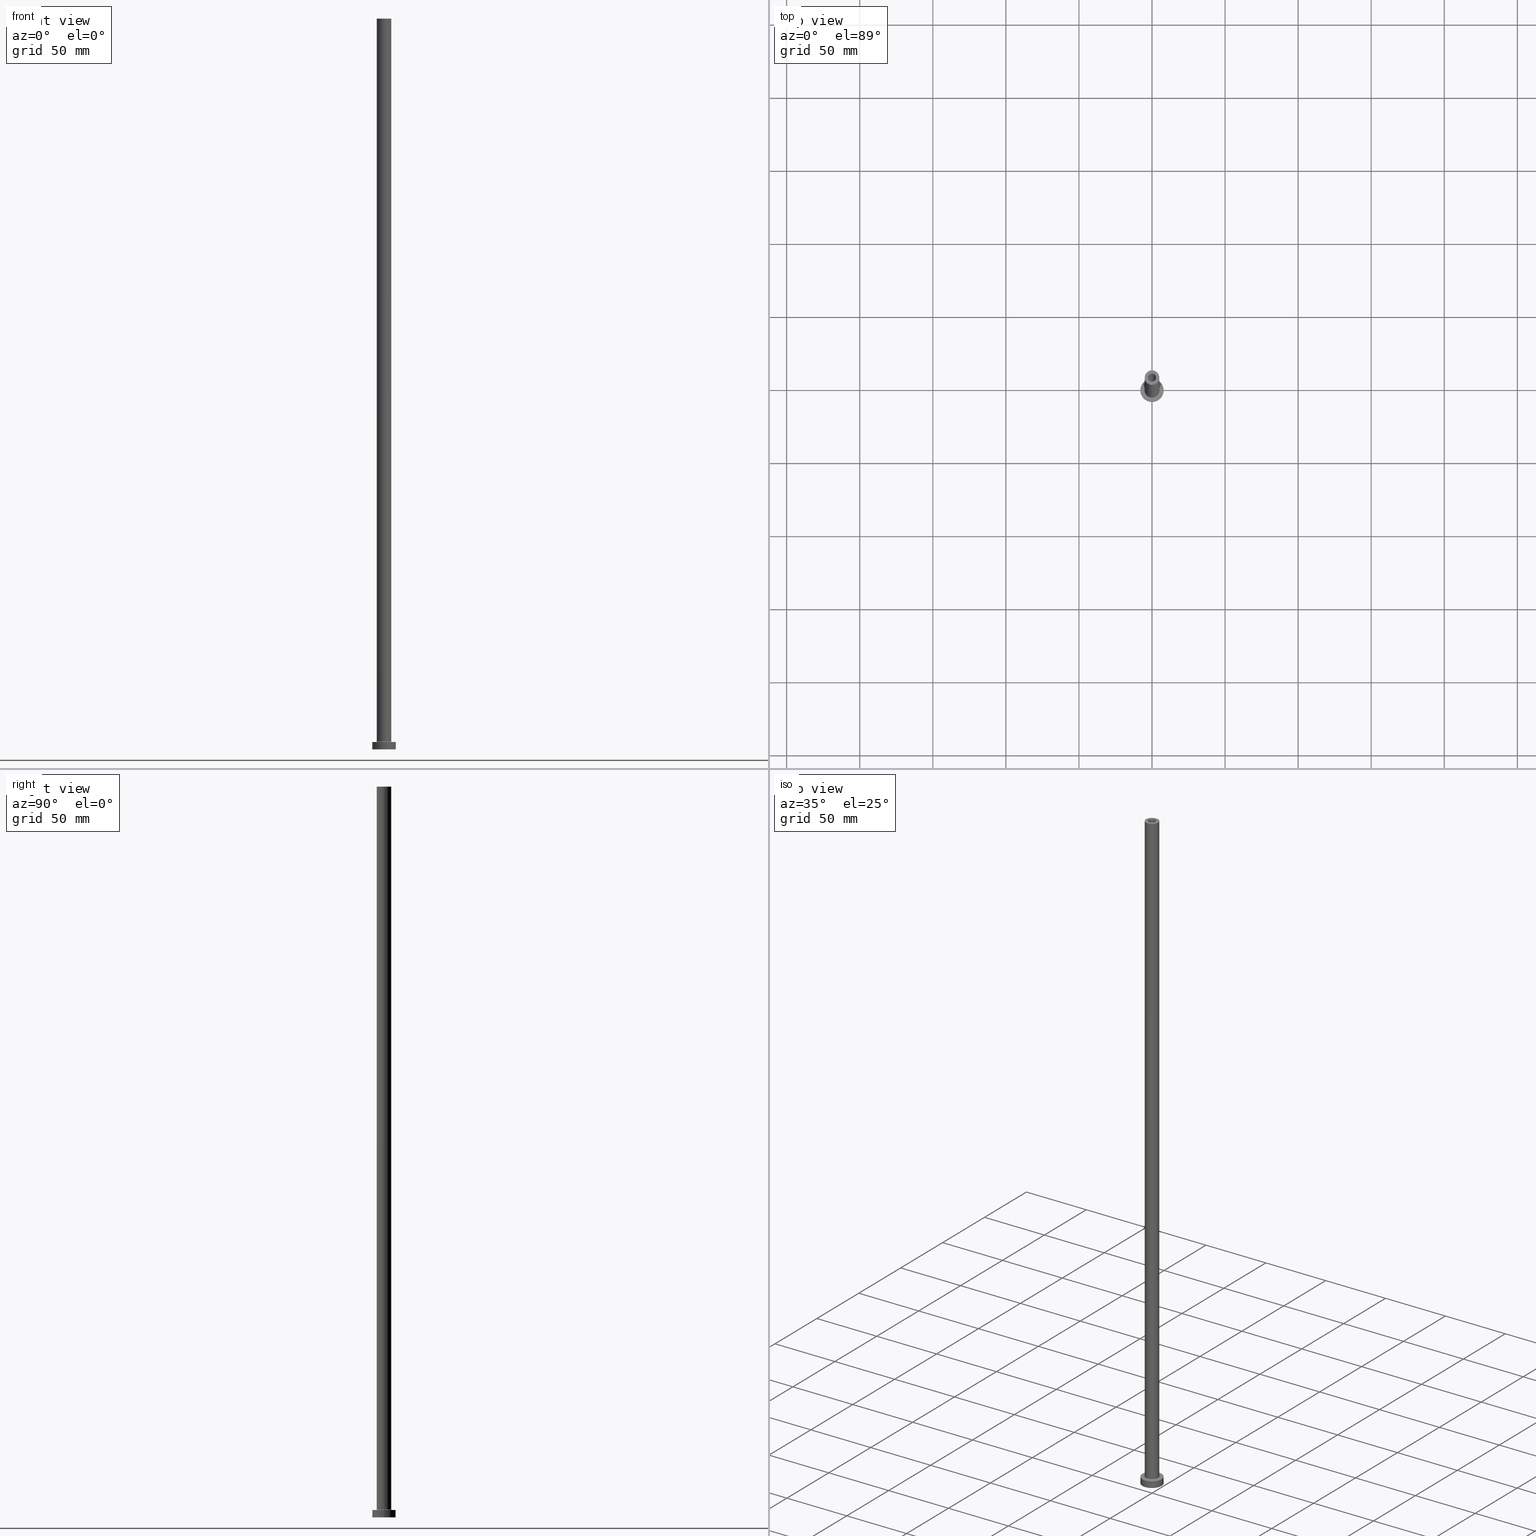
[diagram: canonical four-view strip — front | top / right | iso, engineering-drawing reading convention]
A machine part, canonical four-view strip (front | top / right | iso — engineering-drawing reading convention). The complete STEP part file that produces these views, byte-faithful:
ISO-10303-21;
HEADER;
FILE_DESCRIPTION (( 'STEP AP203' ),
    '1' );
FILE_NAME ('9653.STEP',
    '2023-02-13T16:12:24',
    ( '' ),
    ( '' ),
    'SwSTEP 2.0',
    'SolidWorks 2019',
    '' );
FILE_SCHEMA (( 'CONFIG_CONTROL_DESIGN' ));
ENDSEC;

DATA;
#1 = EDGE_LOOP ( 'NONE', ( #171, #202 ) ) ;
#2 = ORIENTED_EDGE ( 'NONE', *, *, #50, .T. ) ;
#3 = CIRCLE ( 'NONE', #377, 8.000000000000000000 ) ;
#4 = AXIS2_PLACEMENT_3D ( 'NONE', #438, #177, #320 ) ;
#5 = ORIENTED_EDGE ( 'NONE', *, *, #241, .F. ) ;
#6 = EDGE_LOOP ( 'NONE', ( #342, #35 ) ) ;
#7 = EDGE_CURVE ( 'NONE', #13, #164, #21, .T. ) ;
#8 = EDGE_LOOP ( 'NONE', ( #137, #28, #392, #318 ) ) ;
#9 = ADVANCED_FACE ( 'NONE', ( #128 ), #173, .F. ) ;
#10 = DIRECTION ( 'NONE',  ( 1.000000000000000000, 0.000000000000000000, -0.000000000000000000 ) ) ;
#11 = AXIS2_PLACEMENT_3D ( 'NONE', #332, #294, #448 ) ;
#12 = PRODUCT_DEFINITION_FORMATION_WITH_SPECIFIED_SOURCE ( 'LIBOVOLN�', '', #319, .NOT_KNOWN. ) ;
#13 = VERTEX_POINT ( 'NONE', #348 ) ;
#14 = AXIS2_PLACEMENT_3D ( 'NONE', #22, #406, #290 ) ;
#15 = AXIS2_PLACEMENT_3D ( 'NONE', #46, #360, #246 ) ;
#16 = FACE_BOUND ( 'NONE', #91, .T. ) ;
#17 = EDGE_CURVE ( 'NONE', #45, #265, #317, .T. ) ;
#18 = CALENDAR_DATE ( 2023, 13, 2 ) ;
#19 = CARTESIAN_POINT ( 'NONE',  ( -5.000000000000000000, 0.000000000000000000, 500.0000000000000000 ) ) ;
#20 = PERSON_AND_ORGANIZATION ( #458, #401 ) ;
#21 = CIRCLE ( 'NONE', #76, 2.750000000000000000 ) ;
#22 = CARTESIAN_POINT ( 'NONE',  ( 0.000000000000000000, 0.000000000000000000, 5.000000000000000000 ) ) ;
#23 = DIRECTION ( 'NONE',  ( -1.000000000000000000, 1.224646799147351482E-16, 0.000000000000000000 ) ) ;
#24 = COORDINATED_UNIVERSAL_TIME_OFFSET ( 1, 0, .AHEAD. ) ;
#25 = CARTESIAN_POINT ( 'NONE',  ( -2.750000000000000000, 0.000000000000000000, 500.0000000000000000 ) ) ;
#26 = DIRECTION ( 'NONE',  ( 0.000000000000000000, 0.000000000000000000, -1.000000000000000000 ) ) ;
#27 = CARTESIAN_POINT ( 'NONE',  ( 2.750000000000000000, 3.367778697655220519E-16, 500.0000000000000000 ) ) ;
#28 = ORIENTED_EDGE ( 'NONE', *, *, #175, .T. ) ;
#29 = DIRECTION ( 'NONE',  ( 1.000000000000000000, 0.000000000000000000, -0.000000000000000000 ) ) ;
#30 = PRODUCT_RELATED_PRODUCT_CATEGORY ( 'detail', '', ( #319 ) ) ;
#31 = PERSON_AND_ORGANIZATION ( #458, #401 ) ;
#32 = ORIENTED_EDGE ( 'NONE', *, *, #413, .F. ) ;
#33 = EDGE_CURVE ( 'NONE', #95, #40, #159, .T. ) ;
#34 = ORIENTED_EDGE ( 'NONE', *, *, #361, .T. ) ;
#35 = ORIENTED_EDGE ( 'NONE', *, *, #7, .F. ) ;
#36 = VERTEX_POINT ( 'NONE', #242 ) ;
#37 = ORIENTED_EDGE ( 'NONE', *, *, #7, .T. ) ;
#38 = CARTESIAN_POINT ( 'NONE',  ( -8.000000000000000000, 0.000000000000000000, 0.000000000000000000 ) ) ;
#39 = ORIENTED_EDGE ( 'NONE', *, *, #345, .F. ) ;
#40 = VERTEX_POINT ( 'NONE', #69 ) ;
#41 = CARTESIAN_POINT ( 'NONE',  ( 0.000000000000000000, 0.000000000000000000, 500.0000000000000000 ) ) ;
#42 = CC_DESIGN_APPROVAL ( #221, ( #12 ) ) ;
#43 = CARTESIAN_POINT ( 'NONE',  ( 0.000000000000000000, 0.000000000000000000, 0.000000000000000000 ) ) ;
#44 = DIRECTION ( 'NONE',  ( 0.000000000000000000, 0.000000000000000000, 1.000000000000000000 ) ) ;
#45 = VERTEX_POINT ( 'NONE', #352 ) ;
#46 = CARTESIAN_POINT ( 'NONE',  ( 0.000000000000000000, 0.000000000000000000, 0.000000000000000000 ) ) ;
#47 = VECTOR ( 'NONE', #198, 1000.000000000000000 ) ;
#48 = CARTESIAN_POINT ( 'NONE',  ( 0.000000000000000000, 0.000000000000000000, 455.0000000000000000 ) ) ;
#49 = AXIS2_PLACEMENT_3D ( 'NONE', #206, #273, #417 ) ;
#50 = EDGE_CURVE ( 'NONE', #302, #135, #267, .T. ) ;
#51 = DATE_AND_TIME ( #402, #303 ) ;
#52 = DIRECTION ( 'NONE',  ( 0.000000000000000000, 0.000000000000000000, -1.000000000000000000 ) ) ;
#53 = AXIS2_PLACEMENT_3D ( 'NONE', #289, #443, #79 ) ;
#54 = PERSON_AND_ORGANIZATION ( #458, #401 ) ;
#55 = CARTESIAN_POINT ( 'NONE',  ( -5.000000000000000000, 0.000000000000000000, 500.0000000000000000 ) ) ;
#56 = DIRECTION ( 'NONE',  ( 1.000000000000000000, 0.000000000000000000, 0.000000000000000000 ) ) ;
#57 = DIRECTION ( 'NONE',  ( 0.000000000000000000, 0.000000000000000000, 1.000000000000000000 ) ) ;
#58 = DIRECTION ( 'NONE',  ( 0.000000000000000000, 0.000000000000000000, 1.000000000000000000 ) ) ;
#59 = CARTESIAN_POINT ( 'NONE',  ( -8.000000000000000000, 0.000000000000000000, 5.000000000000000000 ) ) ;
#60 = ORIENTED_EDGE ( 'NONE', *, *, #278, .T. ) ;
#61 = DIRECTION ( 'NONE',  ( 0.000000000000000000, 0.000000000000000000, 1.000000000000000000 ) ) ;
#62 = VERTEX_POINT ( 'NONE', #263 ) ;
#63 = CALENDAR_DATE ( 2023, 13, 2 ) ;
#64 = CARTESIAN_POINT ( 'NONE',  ( 8.000000000000000000, 9.797174393178825657E-16, 5.000000000000000000 ) ) ;
#65 = AXIS2_PLACEMENT_3D ( 'NONE', #321, #102, #191 ) ;
#66 = EDGE_CURVE ( 'NONE', #164, #13, #407, .T. ) ;
#67 = DIRECTION ( 'NONE',  ( 0.000000000000000000, 0.000000000000000000, 1.000000000000000000 ) ) ;
#68 = ORIENTED_EDGE ( 'NONE', *, *, #312, .T. ) ;
#69 = CARTESIAN_POINT ( 'NONE',  ( -2.750000000000000000, 0.000000000000000000, 455.0000000000000000 ) ) ;
#70 = CYLINDRICAL_SURFACE ( 'NONE', #370, 5.000000000000000000 ) ;
#71 = ORIENTED_EDGE ( 'NONE', *, *, #382, .T. ) ;
#72 = ORIENTED_EDGE ( 'NONE', *, *, #17, .T. ) ;
#73 = FACE_BOUND ( 'NONE', #199, .T. ) ;
#74 = EDGE_CURVE ( 'NONE', #201, #454, #436, .T. ) ;
#75 = CARTESIAN_POINT ( 'NONE',  ( 0.000000000000000000, 0.000000000000000000, 500.0000000000000000 ) ) ;
#76 = AXIS2_PLACEMENT_3D ( 'NONE', #176, #67, #239 ) ;
#77 = DIRECTION ( 'NONE',  ( 0.000000000000000000, 0.000000000000000000, 1.000000000000000000 ) ) ;
#78 = DIRECTION ( 'NONE',  ( 0.000000000000000000, 0.000000000000000000, 1.000000000000000000 ) ) ;
#79 = DIRECTION ( 'NONE',  ( 1.000000000000000000, 0.000000000000000000, 0.000000000000000000 ) ) ;
#80 = CARTESIAN_POINT ( 'NONE',  ( 5.500000000000000000, 0.000000000000000000, 5.000000000000002665 ) ) ;
#81 = CARTESIAN_POINT ( 'NONE',  ( 2.750000000000000000, 3.367778697655220519E-16, 455.0000000000000000 ) ) ;
#82 = CYLINDRICAL_SURFACE ( 'NONE', #238, 2.899999999999999911 ) ;
#83 = EDGE_CURVE ( 'NONE', #418, #36, #205, .T. ) ;
#84 = DATE_AND_TIME ( #405, #113 ) ;
#85 = APPROVAL_DATE_TIME ( #229, #261 ) ;
#86 = FACE_OUTER_BOUND ( 'NONE', #178, .T. ) ;
#87 = AXIS2_PLACEMENT_3D ( 'NONE', #399, #364, #286 ) ;
#88 = APPROVAL_PERSON_ORGANIZATION ( #20, #375, #266 ) ;
#89 = CARTESIAN_POINT ( 'NONE',  ( 0.000000000000000000, 0.000000000000000000, 5.000000000000000000 ) ) ;
#90 = EDGE_LOOP ( 'NONE', ( #309, #72 ) ) ;
#91 = EDGE_LOOP ( 'NONE', ( #131, #240 ) ) ;
#92 = ORIENTED_EDGE ( 'NONE', *, *, #116, .T. ) ;
#93 = LINE ( 'NONE', #381, #211 ) ;
#94 = ORIENTED_EDGE ( 'NONE', *, *, #50, .F. ) ;
#95 = VERTEX_POINT ( 'NONE', #81 ) ;
#96 = CIRCLE ( 'NONE', #355, 0.5000000000000004441 ) ;
#97 = CARTESIAN_POINT ( 'NONE',  ( 0.000000000000000000, 0.000000000000000000, 5.500000000000005329 ) ) ;
#98 = EDGE_LOOP ( 'NONE', ( #39, #157, #99, #92 ) ) ;
#99 = ORIENTED_EDGE ( 'NONE', *, *, #241, .T. ) ;
#100 = AXIS2_PLACEMENT_3D ( 'NONE', #299, #415, #330 ) ;
#101 = DIRECTION ( 'NONE',  ( -1.000000000000000000, 0.000000000000000000, 0.000000000000000000 ) ) ;
#102 = DIRECTION ( 'NONE',  ( 0.000000000000000000, 0.000000000000000000, 1.000000000000000000 ) ) ;
#103 = DIRECTION ( 'NONE',  ( 0.000000000000000000, 0.000000000000000000, 1.000000000000000000 ) ) ;
#104 = CIRCLE ( 'NONE', #11, 2.899999999999999911 ) ;
#105 = DIRECTION ( 'NONE',  ( 0.000000000000000000, 0.000000000000000000, -1.000000000000000000 ) ) ;
#106 = EDGE_LOOP ( 'NONE', ( #357, #374, #304, #125 ) ) ;
#107 = EDGE_CURVE ( 'NONE', #164, #40, #333, .T. ) ;
#108 = CARTESIAN_POINT ( 'NONE',  ( 0.000000000000000000, 0.000000000000000000, 455.0000000000000000 ) ) ;
#109 = CLOSED_SHELL ( 'NONE', ( #9, #445, #453, #366, #140, #419, #326, #295, #209, #224, #151, #204, #284, #372 ) ) ;
#110 = ORIENTED_EDGE ( 'NONE', *, *, #331, .T. ) ;
#111 = LINE ( 'NONE', #391, #422 ) ;
#112 = CIRCLE ( 'NONE', #172, 2.899999999999999911 ) ;
#113 = LOCAL_TIME ( 17, 12, 24.00000000000000000, #257 ) ;
#114 = AXIS2_PLACEMENT_3D ( 'NONE', #193, #285, #442 ) ;
#115 = DIRECTION ( 'NONE',  ( 1.000000000000000000, 0.000000000000000000, 0.000000000000000000 ) ) ;
#116 = EDGE_CURVE ( 'NONE', #380, #457, #234, .T. ) ;
#117 = CARTESIAN_POINT ( 'NONE',  ( 5.500000000000000000, 0.000000000000000000, 5.500000000000005329 ) ) ;
#118 = APPROVAL_STATUS ( 'not_yet_approved' ) ;
#119 = FACE_BOUND ( 'NONE', #307, .T. ) ;
#120 = CARTESIAN_POINT ( 'NONE',  ( 0.000000000000000000, 0.000000000000000000, 463.2024386617639493 ) ) ;
#121 = DIRECTION ( 'NONE',  ( 0.000000000000000000, 0.000000000000000000, -1.000000000000000000 ) ) ;
#122 = VECTOR ( 'NONE', #365, 1000.000000000000000 ) ;
#123 = CARTESIAN_POINT ( 'NONE',  ( 2.899999999999999911, 3.551475717527323339E-16, 455.0000000000000000 ) ) ;
#124 = PERSON_AND_ORGANIZATION_ROLE ( 'creator' ) ;
#125 = ORIENTED_EDGE ( 'NONE', *, *, #441, .F. ) ;
#126 = APPROVAL_PERSON_ORGANIZATION ( #54, #221, #412 ) ;
#127 = ORIENTED_EDGE ( 'NONE', *, *, #130, .T. ) ;
#128 = FACE_OUTER_BOUND ( 'NONE', #8, .T. ) ;
#129 = EDGE_LOOP ( 'NONE', ( #236, #425, #34, #5 ) ) ;
#130 = EDGE_CURVE ( 'NONE', #135, #302, #153, .T. ) ;
#131 = ORIENTED_EDGE ( 'NONE', *, *, #83, .T. ) ;
#132 = AXIS2_PLACEMENT_3D ( 'NONE', #154, #296, #259 ) ;
#133 = ORIENTED_EDGE ( 'NONE', *, *, #175, .F. ) ;
#134 = CARTESIAN_POINT ( 'NONE',  ( 0.000000000000000000, 0.000000000000000000, 500.0000000000000000 ) ) ;
#135 = VERTEX_POINT ( 'NONE', #410 ) ;
#136 = DIRECTION ( 'NONE',  ( 1.000000000000000000, 0.000000000000000000, 0.000000000000000000 ) ) ;
#137 = ORIENTED_EDGE ( 'NONE', *, *, #66, .T. ) ;
#138 = AXIS2_PLACEMENT_3D ( 'NONE', #403, #232, #56 ) ;
#139 = DIRECTION ( 'NONE',  ( -0.000000000000000000, -0.000000000000000000, -1.000000000000000000 ) ) ;
#140 = ADVANCED_FACE ( 'NONE', ( #373 ), #195, .T. ) ;
#141 = AXIS2_PLACEMENT_3D ( 'NONE', #160, #455, #379 ) ;
#142 = FACE_OUTER_BOUND ( 'NONE', #129, .T. ) ;
#143 = CC_DESIGN_APPROVAL ( #261, ( #337 ) ) ;
#144 = CC_DESIGN_PERSON_AND_ORGANIZATION_ASSIGNMENT ( #31, #161, ( #282 ) ) ;
#145 = EDGE_LOOP ( 'NONE', ( #216, #235, #169, #420 ) ) ;
#146 = DIRECTION ( 'NONE',  ( 0.000000000000000000, 0.000000000000000000, -1.000000000000000000 ) ) ;
#147 = APPLICATION_PROTOCOL_DEFINITION ( 'international standard', 'config_control_design', 1994, #327 ) ;
#148 = CC_DESIGN_SECURITY_CLASSIFICATION ( #282, ( #12 ) ) ;
#149 = CARTESIAN_POINT ( 'NONE',  ( 0.000000000000000000, 0.000000000000000000, 500.0000000000000000 ) ) ;
#150 = CYLINDRICAL_SURFACE ( 'NONE', #132, 8.000000000000000000 ) ;
#151 = ADVANCED_FACE ( 'NONE', ( #305 ), #340, .F. ) ;
#152 = CYLINDRICAL_SURFACE ( 'NONE', #411, 2.899999999999999911 ) ;
#153 = CIRCLE ( 'NONE', #421, 8.000000000000000000 ) ;
#154 = CARTESIAN_POINT ( 'NONE',  ( 0.000000000000000000, 0.000000000000000000, 5.000000000000000000 ) ) ;
#155 = PERSON_AND_ORGANIZATION ( #458, #401 ) ;
#156 = EDGE_CURVE ( 'NONE', #302, #344, #272, .T. ) ;
#157 = ORIENTED_EDGE ( 'NONE', *, *, #389, .F. ) ;
#158 = LINE ( 'NONE', #55, #237 ) ;
#159 = CIRCLE ( 'NONE', #444, 2.750000000000000000 ) ;
#160 = CARTESIAN_POINT ( 'NONE',  ( 0.000000000000000000, 0.000000000000000000, 5.000000000000000000 ) ) ;
#161 = PERSON_AND_ORGANIZATION_ROLE ( 'classification_officer' ) ;
#162 = ORIENTED_EDGE ( 'NONE', *, *, #429, .F. ) ;
#163 =( NAMED_UNIT ( * ) PLANE_ANGLE_UNIT ( ) SI_UNIT ( $, .RADIAN. ) );
#164 = VERTEX_POINT ( 'NONE', #208 ) ;
#165 = EDGE_LOOP ( 'NONE', ( #376, #110, #427, #264 ) ) ;
#166 = EDGE_CURVE ( 'NONE', #344, #274, #3, .T. ) ;
#167 = DIRECTION ( 'NONE',  ( 0.000000000000000000, 0.000000000000000000, 1.000000000000000000 ) ) ;
#168 = DIRECTION ( 'NONE',  ( -0.000000000000000000, -0.000000000000000000, -1.000000000000000000 ) ) ;
#169 = ORIENTED_EDGE ( 'NONE', *, *, #74, .T. ) ;
#170 = APPLICATION_PROTOCOL_DEFINITION ( 'international standard', 'config_control_design', 1994, #308 ) ;
#171 = ORIENTED_EDGE ( 'NONE', *, *, #408, .F. ) ;
#172 = AXIS2_PLACEMENT_3D ( 'NONE', #185, #78, #329 ) ;
#173 = CYLINDRICAL_SURFACE ( 'NONE', #49, 2.750000000000000000 ) ;
#174 = CARTESIAN_POINT ( 'NONE',  ( 0.000000000000000000, 0.000000000000000000, 5.000000000000000000 ) ) ;
#175 = EDGE_CURVE ( 'NONE', #13, #95, #336, .T. ) ;
#176 = CARTESIAN_POINT ( 'NONE',  ( 0.000000000000000000, 0.000000000000000000, 500.0000000000000000 ) ) ;
#177 = DIRECTION ( 'NONE',  ( 0.000000000000000000, 0.000000000000000000, 1.000000000000000000 ) ) ;
#178 = EDGE_LOOP ( 'NONE', ( #32, #314, #71, #60 ) ) ;
#179 = FACE_OUTER_BOUND ( 'NONE', #383, .T. ) ;
#180 = MECHANICAL_CONTEXT ( 'NONE', #308, 'mechanical' ) ;
#181 = MANIFOLD_SOLID_BREP ( 'Odebrat vysunut�m4', #109 ) ;
#182 = DIRECTION ( 'NONE',  ( 0.000000000000000000, 0.000000000000000000, 1.000000000000000000 ) ) ;
#183 = AXIS2_PLACEMENT_3D ( 'NONE', #447, #182, #449 ) ;
#184 = APPROVAL_DATE_TIME ( #84, #221 ) ;
#185 = CARTESIAN_POINT ( 'NONE',  ( 0.000000000000000000, 0.000000000000000000, 455.0000000000000000 ) ) ;
#186 = FACE_OUTER_BOUND ( 'NONE', #269, .T. ) ;
#187 = EDGE_CURVE ( 'NONE', #461, #62, #112, .T. ) ;
#188 = DATE_TIME_ROLE ( 'classification_date' ) ;
#189 = CARTESIAN_POINT ( 'NONE',  ( -5.500000000000000000, 6.735557395310442023E-16, 5.500000000000005329 ) ) ;
#190 = CARTESIAN_POINT ( 'NONE',  ( 8.000000000000000000, 9.797174393178825657E-16, 0.000000000000000000 ) ) ;
#191 = DIRECTION ( 'NONE',  ( 1.000000000000000000, 0.000000000000000000, -0.000000000000000000 ) ) ;
#192 = TOROIDAL_SURFACE ( 'NONE', #439, 5.500000000000000000, 0.5000000000000000000 ) ;
#193 = CARTESIAN_POINT ( 'NONE',  ( 0.000000000000000000, 0.000000000000000000, 455.0000000000000000 ) ) ;
#194 = DIRECTION ( 'NONE',  ( 0.000000000000000000, 0.000000000000000000, 1.000000000000000000 ) ) ;
#195 = CYLINDRICAL_SURFACE ( 'NONE', #141, 8.000000000000000000 ) ;
#196 = SECURITY_CLASSIFICATION_LEVEL ( 'unclassified' ) ;
#197 = DIRECTION ( 'NONE',  ( 1.000000000000000000, 0.000000000000000000, -0.000000000000000000 ) ) ;
#198 = DIRECTION ( 'NONE',  ( -0.000000000000000000, -0.000000000000000000, -1.000000000000000000 ) ) ;
#199 = EDGE_LOOP ( 'NONE', ( #387, #220 ) ) ;
#200 = AXIS2_PLACEMENT_3D ( 'NONE', #149, #194, #29 ) ;
#201 = VERTEX_POINT ( 'NONE', #298 ) ;
#202 = ORIENTED_EDGE ( 'NONE', *, *, #187, .F. ) ;
#203 = CARTESIAN_POINT ( 'NONE',  ( -8.000000000000000000, 0.000000000000000000, 5.000000000000000000 ) ) ;
#204 = ADVANCED_FACE ( 'NONE', ( #86 ), #152, .F. ) ;
#205 = CIRCLE ( 'NONE', #14, 5.500000000000000000 ) ;
#206 = CARTESIAN_POINT ( 'NONE',  ( 0.000000000000000000, 0.000000000000000000, 500.0000000000000000 ) ) ;
#207 = ORIENTED_EDGE ( 'NONE', *, *, #361, .F. ) ;
#208 = CARTESIAN_POINT ( 'NONE',  ( -2.750000000000000000, 0.000000000000000000, 500.0000000000000000 ) ) ;
#209 = ADVANCED_FACE ( 'NONE', ( #301 ), #260, .T. ) ;
#210 = DIRECTION ( 'NONE',  ( 1.000000000000000000, 0.000000000000000000, 0.000000000000000000 ) ) ;
#211 = VECTOR ( 'NONE', #168, 1000.000000000000000 ) ;
#212 = ORIENTED_EDGE ( 'NONE', *, *, #107, .T. ) ;
#213 = DESIGN_CONTEXT ( 'detailed design', #327, 'design' ) ;
#214 = EDGE_LOOP ( 'NONE', ( #133, #37, #212, #430 ) ) ;
#215 = CARTESIAN_POINT ( 'NONE',  ( -5.000000000000000000, 0.000000000000000000, 5.500000000000005329 ) ) ;
#216 = ORIENTED_EDGE ( 'NONE', *, *, #408, .T. ) ;
#217 = AXIS2_PLACEMENT_3D ( 'NONE', #117, #226, #256 ) ;
#218 = DIRECTION ( 'NONE',  ( 0.000000000000000000, 0.000000000000000000, 1.000000000000000000 ) ) ;
#219 = AXIS2_PLACEMENT_3D ( 'NONE', #75, #105, #356 ) ;
#220 = ORIENTED_EDGE ( 'NONE', *, *, #74, .F. ) ;
#221 = APPROVAL ( #118, 'NEUR�EN�' ) ;
#222 = CIRCLE ( 'NONE', #217, 0.5000000000000004441 ) ;
#223 = DIRECTION ( 'NONE',  ( -1.000000000000000000, 0.000000000000000000, 0.000000000000000000 ) ) ;
#224 = ADVANCED_FACE ( 'NONE', ( #409, #230 ), #371, .T. ) ;
#225 = DIRECTION ( 'NONE',  ( 1.000000000000000000, 0.000000000000000000, 0.000000000000000000 ) ) ;
#226 = DIRECTION ( 'NONE',  ( 0.000000000000000000, -1.000000000000000000, 0.000000000000000000 ) ) ;
#227 = CARTESIAN_POINT ( 'NONE',  ( 0.000000000000000000, 0.000000000000000000, 5.000000000000000000 ) ) ;
#228 = APPROVAL_STATUS ( 'not_yet_approved' ) ;
#229 = DATE_AND_TIME ( #18, #311 ) ;
#230 = FACE_OUTER_BOUND ( 'NONE', #90, .T. ) ;
#231 =( GEOMETRIC_REPRESENTATION_CONTEXT ( 3 ) GLOBAL_UNCERTAINTY_ASSIGNED_CONTEXT ( ( #288 ) ) GLOBAL_UNIT_ASSIGNED_CONTEXT ( ( #343, #163, #341 ) ) REPRESENTATION_CONTEXT ( 'NONE', 'WORKASPACE' ) );
#232 = DIRECTION ( 'NONE',  ( 0.000000000000000000, 0.000000000000000000, 1.000000000000000000 ) ) ;
#233 = ORIENTED_EDGE ( 'NONE', *, *, #441, .T. ) ;
#234 = CIRCLE ( 'NONE', #384, 5.000000000000000000 ) ;
#235 = ORIENTED_EDGE ( 'NONE', *, *, #413, .T. ) ;
#236 = ORIENTED_EDGE ( 'NONE', *, *, #17, .F. ) ;
#237 = VECTOR ( 'NONE', #397, 1000.000000000000000 ) ;
#238 = AXIS2_PLACEMENT_3D ( 'NONE', #120, #146, #283 ) ;
#239 = DIRECTION ( 'NONE',  ( 1.000000000000000000, 0.000000000000000000, 0.000000000000000000 ) ) ;
#240 = ORIENTED_EDGE ( 'NONE', *, *, #247, .T. ) ;
#241 = EDGE_CURVE ( 'NONE', #265, #380, #158, .T. ) ;
#242 = CARTESIAN_POINT ( 'NONE',  ( -5.500000000000000000, 6.735557395310442023E-16, 5.000000000000002665 ) ) ;
#243 = DIRECTION ( 'NONE',  ( 1.000000000000000000, 0.000000000000000000, 0.000000000000000000 ) ) ;
#244 = APPROVAL_PERSON_ORGANIZATION ( #325, #261, #279 ) ;
#245 = ORIENTED_EDGE ( 'NONE', *, *, #437, .F. ) ;
#246 = DIRECTION ( 'NONE',  ( 1.000000000000000000, 0.000000000000000000, 0.000000000000000000 ) ) ;
#247 = EDGE_CURVE ( 'NONE', #36, #418, #433, .T. ) ;
#248 = FACE_OUTER_BOUND ( 'NONE', #214, .T. ) ;
#249 = CIRCLE ( 'NONE', #4, 5.000000000000000000 ) ;
#250 = CARTESIAN_POINT ( 'NONE',  ( -2.899999999999999911, 0.000000000000000000, 0.000000000000000000 ) ) ;
#251 = LINE ( 'NONE', #404, #293 ) ;
#252 = CC_DESIGN_PERSON_AND_ORGANIZATION_ASSIGNMENT ( #297, #450, ( #12 ) ) ;
#253 = AXIS2_PLACEMENT_3D ( 'NONE', #48, #77, #10 ) ;
#254 = LOCAL_TIME ( 17, 12, 24.00000000000000000, #416 ) ;
#255 = PERSON_AND_ORGANIZATION ( #458, #401 ) ;
#256 = DIRECTION ( 'NONE',  ( 0.000000000000000000, 0.000000000000000000, -1.000000000000000000 ) ) ;
#257 = COORDINATED_UNIVERSAL_TIME_OFFSET ( 1, 0, .AHEAD. ) ;
#258 = FACE_OUTER_BOUND ( 'NONE', #1, .T. ) ;
#259 = DIRECTION ( 'NONE',  ( -1.000000000000000000, 0.000000000000000000, 0.000000000000000000 ) ) ;
#260 = CYLINDRICAL_SURFACE ( 'NONE', #87, 5.000000000000000000 ) ;
#261 = APPROVAL ( #228, 'NEUR�EN�' ) ;
#262 = AXIS2_PLACEMENT_3D ( 'NONE', #108, #218, #334 ) ;
#263 = CARTESIAN_POINT ( 'NONE',  ( -2.899999999999999911, 0.000000000000000000, 455.0000000000000000 ) ) ;
#264 = ORIENTED_EDGE ( 'NONE', *, *, #156, .F. ) ;
#265 = VERTEX_POINT ( 'NONE', #19 ) ;
#266 = APPROVAL_ROLE ( '' ) ;
#267 = CIRCLE ( 'NONE', #394, 8.000000000000000000 ) ;
#268 = CIRCLE ( 'NONE', #395, 5.000000000000000000 ) ;
#269 = EDGE_LOOP ( 'NONE', ( #306, #94, #432, #313 ) ) ;
#270 = CARTESIAN_POINT ( 'NONE',  ( 0.000000000000000000, 0.000000000000000000, 455.0000000000000000 ) ) ;
#271 = CALENDAR_DATE ( 2023, 13, 2 ) ;
#272 = LINE ( 'NONE', #203, #292 ) ;
#273 = DIRECTION ( 'NONE',  ( 0.000000000000000000, 0.000000000000000000, -1.000000000000000000 ) ) ;
#274 = VERTEX_POINT ( 'NONE', #190 ) ;
#275 = DATE_AND_TIME ( #271, #276 ) ;
#276 = LOCAL_TIME ( 17, 12, 24.00000000000000000, #349 ) ;
#277 = SHAPE_DEFINITION_REPRESENTATION ( #346, #347 ) ;
#278 = EDGE_CURVE ( 'NONE', #454, #201, #104, .T. ) ;
#279 = APPROVAL_ROLE ( '' ) ;
#280 = PERSON_AND_ORGANIZATION_ROLE ( 'design_owner' ) ;
#281 = DIRECTION ( 'NONE',  ( 0.000000000000000000, 0.000000000000000000, -1.000000000000000000 ) ) ;
#282 = SECURITY_CLASSIFICATION ( '', '', #196 ) ;
#283 = DIRECTION ( 'NONE',  ( -1.000000000000000000, 0.000000000000000000, 0.000000000000000000 ) ) ;
#284 = ADVANCED_FACE ( 'NONE', ( #119, #258 ), #414, .F. ) ;
#285 = DIRECTION ( 'NONE',  ( 0.000000000000000000, 0.000000000000000000, 1.000000000000000000 ) ) ;
#286 = DIRECTION ( 'NONE',  ( -1.000000000000000000, 0.000000000000000000, 0.000000000000000000 ) ) ;
#287 = DIRECTION ( 'NONE',  ( 1.224646799147353207E-16, 1.000000000000000000, -0.000000000000000000 ) ) ;
#288 = UNCERTAINTY_MEASURE_WITH_UNIT (LENGTH_MEASURE( 1.000000000000000082E-05 ), #343, 'distance_accuracy_value', 'NONE');
#289 = CARTESIAN_POINT ( 'NONE',  ( 0.000000000000000000, 0.000000000000000000, 5.000000000000000000 ) ) ;
#290 = DIRECTION ( 'NONE',  ( 1.000000000000000000, 0.000000000000000000, 0.000000000000000000 ) ) ;
#291 = DATE_AND_TIME ( #63, #254 ) ;
#292 = VECTOR ( 'NONE', #385, 1000.000000000000000 ) ;
#293 = VECTOR ( 'NONE', #26, 1000.000000000000000 ) ;
#294 = DIRECTION ( 'NONE',  ( -0.000000000000000000, -0.000000000000000000, -1.000000000000000000 ) ) ;
#295 = ADVANCED_FACE ( 'NONE', ( #73, #179 ), #359, .F. ) ;
#296 = DIRECTION ( 'NONE',  ( -0.000000000000000000, -0.000000000000000000, -1.000000000000000000 ) ) ;
#297 = PERSON_AND_ORGANIZATION ( #458, #401 ) ;
#298 = CARTESIAN_POINT ( 'NONE',  ( 2.899999999999999911, 3.551475717527323339E-16, 0.000000000000000000 ) ) ;
#299 = CARTESIAN_POINT ( 'NONE',  ( 0.000000000000000000, 0.000000000000000000, 0.000000000000000000 ) ) ;
#300 = PLANE ( 'NONE',  #335 ) ;
#301 = FACE_OUTER_BOUND ( 'NONE', #98, .T. ) ;
#302 = VERTEX_POINT ( 'NONE', #59 ) ;
#303 = LOCAL_TIME ( 17, 12, 24.00000000000000000, #363 ) ;
#304 = ORIENTED_EDGE ( 'NONE', *, *, #83, .F. ) ;
#305 = FACE_OUTER_BOUND ( 'NONE', #423, .T. ) ;
#306 = ORIENTED_EDGE ( 'NONE', *, *, #331, .F. ) ;
#307 = EDGE_LOOP ( 'NONE', ( #68, #353 ) ) ;
#308 = APPLICATION_CONTEXT ( 'configuration controlled 3d designs of mechanical parts and assemblies' ) ;
#309 = ORIENTED_EDGE ( 'NONE', *, *, #389, .T. ) ;
#310 = VECTOR ( 'NONE', #52, 1000.000000000000000 ) ;
#311 = LOCAL_TIME ( 17, 12, 24.00000000000000000, #24 ) ;
#312 = EDGE_CURVE ( 'NONE', #40, #95, #322, .T. ) ;
#313 = ORIENTED_EDGE ( 'NONE', *, *, #166, .T. ) ;
#314 = ORIENTED_EDGE ( 'NONE', *, *, #187, .T. ) ;
#315 = CC_DESIGN_PERSON_AND_ORGANIZATION_ASSIGNMENT ( #255, #124, ( #337 ) ) ;
#316 = DIRECTION ( 'NONE',  ( 0.000000000000000000, 0.000000000000000000, 1.000000000000000000 ) ) ;
#317 = CIRCLE ( 'NONE', #362, 5.000000000000000000 ) ;
#318 = ORIENTED_EDGE ( 'NONE', *, *, #107, .F. ) ;
#319 = PRODUCT ( '9653', '9653', '', ( #180 ) ) ;
#320 = DIRECTION ( 'NONE',  ( 1.000000000000000000, 0.000000000000000000, 0.000000000000000000 ) ) ;
#321 = CARTESIAN_POINT ( 'NONE',  ( 0.000000000000000000, 0.000000000000000000, 0.000000000000000000 ) ) ;
#322 = CIRCLE ( 'NONE', #114, 2.750000000000000000 ) ;
#323 = EDGE_LOOP ( 'NONE', ( #2, #127 ) ) ;
#324 = PERSON_AND_ORGANIZATION ( #458, #401 ) ;
#325 = PERSON_AND_ORGANIZATION ( #458, #401 ) ;
#326 = ADVANCED_FACE ( 'NONE', ( #16, #398 ), #300, .T. ) ;
#327 = APPLICATION_CONTEXT ( 'configuration controlled 3d designs of mechanical parts and assemblies' ) ;
#328 = PERSON_AND_ORGANIZATION_ROLE ( 'creator' ) ;
#329 = DIRECTION ( 'NONE',  ( 1.000000000000000000, 0.000000000000000000, 0.000000000000000000 ) ) ;
#330 = DIRECTION ( 'NONE',  ( 1.000000000000000000, 0.000000000000000000, 0.000000000000000000 ) ) ;
#331 = EDGE_CURVE ( 'NONE', #135, #274, #338, .T. ) ;
#332 = CARTESIAN_POINT ( 'NONE',  ( 0.000000000000000000, 0.000000000000000000, 0.000000000000000000 ) ) ;
#333 = LINE ( 'NONE', #25, #122 ) ;
#334 = DIRECTION ( 'NONE',  ( 1.000000000000000000, 0.000000000000000000, 0.000000000000000000 ) ) ;
#335 = AXIS2_PLACEMENT_3D ( 'NONE', #89, #426, #197 ) ;
#336 = LINE ( 'NONE', #27, #310 ) ;
#337 = PRODUCT_DEFINITION ( 'NEZN�M�', '', #12, #213 ) ;
#338 = LINE ( 'NONE', #64, #47 ) ;
#339 = CC_DESIGN_PERSON_AND_ORGANIZATION_ASSIGNMENT ( #324, #280, ( #319 ) ) ;
#340 = TOROIDAL_SURFACE ( 'NONE', #400, 5.500000000000000000, 0.5000000000000000000 ) ;
#341 =( NAMED_UNIT ( * ) SI_UNIT ( $, .STERADIAN. ) SOLID_ANGLE_UNIT ( ) );
#342 = ORIENTED_EDGE ( 'NONE', *, *, #66, .F. ) ;
#343 =( LENGTH_UNIT ( ) NAMED_UNIT ( * ) SI_UNIT ( .MILLI., .METRE. ) );
#344 = VERTEX_POINT ( 'NONE', #38 ) ;
#345 = EDGE_CURVE ( 'NONE', #45, #457, #93, .T. ) ;
#346 = PRODUCT_DEFINITION_SHAPE ( 'NONE', 'NONE',  #337 ) ;
#347 = ADVANCED_BREP_SHAPE_REPRESENTATION ( '9653', ( #181, #15 ), #231 ) ;
#348 = CARTESIAN_POINT ( 'NONE',  ( 2.750000000000000000, 3.367778697655220519E-16, 500.0000000000000000 ) ) ;
#349 = COORDINATED_UNIVERSAL_TIME_OFFSET ( 1, 0, .AHEAD. ) ;
#350 = CC_DESIGN_APPROVAL ( #375, ( #282 ) ) ;
#351 = CC_DESIGN_PERSON_AND_ORGANIZATION_ASSIGNMENT ( #155, #328, ( #12 ) ) ;
#352 = CARTESIAN_POINT ( 'NONE',  ( 5.000000000000000000, 6.123233995736766282E-16, 500.0000000000000000 ) ) ;
#353 = ORIENTED_EDGE ( 'NONE', *, *, #33, .T. ) ;
#354 = CC_DESIGN_DATE_AND_TIME_ASSIGNMENT ( #291, #188, ( #282 ) ) ;
#355 = AXIS2_PLACEMENT_3D ( 'NONE', #189, #287, #23 ) ;
#356 = DIRECTION ( 'NONE',  ( -1.000000000000000000, 0.000000000000000000, 0.000000000000000000 ) ) ;
#357 = ORIENTED_EDGE ( 'NONE', *, *, #116, .F. ) ;
#358 = FACE_OUTER_BOUND ( 'NONE', #145, .T. ) ;
#359 = PLANE ( 'NONE',  #65 ) ;
#360 = DIRECTION ( 'NONE',  ( 0.000000000000000000, 0.000000000000000000, 1.000000000000000000 ) ) ;
#361 = EDGE_CURVE ( 'NONE', #457, #380, #268, .T. ) ;
#362 = AXIS2_PLACEMENT_3D ( 'NONE', #134, #44, #210 ) ;
#363 = COORDINATED_UNIVERSAL_TIME_OFFSET ( 1, 0, .AHEAD. ) ;
#364 = DIRECTION ( 'NONE',  ( -0.000000000000000000, -0.000000000000000000, -1.000000000000000000 ) ) ;
#365 = DIRECTION ( 'NONE',  ( 0.000000000000000000, 0.000000000000000000, -1.000000000000000000 ) ) ;
#366 = ADVANCED_FACE ( 'NONE', ( #142 ), #70, .T. ) ;
#367 = DATE_TIME_ROLE ( 'creation_date' ) ;
#368 = APPROVAL_STATUS ( 'not_yet_approved' ) ;
#369 = DIRECTION ( 'NONE',  ( 1.000000000000000000, 0.000000000000000000, 0.000000000000000000 ) ) ;
#370 = AXIS2_PLACEMENT_3D ( 'NONE', #41, #139, #101 ) ;
#371 = PLANE ( 'NONE',  #200 ) ;
#372 = ADVANCED_FACE ( 'NONE', ( #248 ), #431, .F. ) ;
#373 = FACE_OUTER_BOUND ( 'NONE', #165, .T. ) ;
#374 = ORIENTED_EDGE ( 'NONE', *, *, #429, .T. ) ;
#375 = APPROVAL ( #368, 'NEUR�EN�' ) ;
#376 = ORIENTED_EDGE ( 'NONE', *, *, #130, .F. ) ;
#377 = AXIS2_PLACEMENT_3D ( 'NONE', #43, #388, #225 ) ;
#378 = CIRCLE ( 'NONE', #262, 2.899999999999999911 ) ;
#379 = DIRECTION ( 'NONE',  ( -1.000000000000000000, 0.000000000000000000, 0.000000000000000000 ) ) ;
#380 = VERTEX_POINT ( 'NONE', #215 ) ;
#381 = CARTESIAN_POINT ( 'NONE',  ( 5.000000000000000000, 6.123233995736766282E-16, 500.0000000000000000 ) ) ;
#382 = EDGE_CURVE ( 'NONE', #62, #454, #111, .T. ) ;
#383 = EDGE_LOOP ( 'NONE', ( #456, #245 ) ) ;
#384 = AXIS2_PLACEMENT_3D ( 'NONE', #446, #61, #115 ) ;
#385 = DIRECTION ( 'NONE',  ( -0.000000000000000000, -0.000000000000000000, -1.000000000000000000 ) ) ;
#386 = DIRECTION ( 'NONE',  ( 1.000000000000000000, 0.000000000000000000, 0.000000000000000000 ) ) ;
#387 = ORIENTED_EDGE ( 'NONE', *, *, #278, .F. ) ;
#388 = DIRECTION ( 'NONE',  ( 0.000000000000000000, 0.000000000000000000, 1.000000000000000000 ) ) ;
#389 = EDGE_CURVE ( 'NONE', #265, #45, #249, .T. ) ;
#390 = ORIENTED_EDGE ( 'NONE', *, *, #247, .F. ) ;
#391 = CARTESIAN_POINT ( 'NONE',  ( -2.899999999999999911, 0.000000000000000000, 463.2024386617639493 ) ) ;
#392 = ORIENTED_EDGE ( 'NONE', *, *, #312, .F. ) ;
#393 = CC_DESIGN_DATE_AND_TIME_ASSIGNMENT ( #51, #367, ( #337 ) ) ;
#394 = AXIS2_PLACEMENT_3D ( 'NONE', #174, #103, #243 ) ;
#395 = AXIS2_PLACEMENT_3D ( 'NONE', #97, #316, #434 ) ;
#396 = CARTESIAN_POINT ( 'NONE',  ( 0.000000000000000000, 0.000000000000000000, 5.500000000000005329 ) ) ;
#397 = DIRECTION ( 'NONE',  ( -0.000000000000000000, -0.000000000000000000, -1.000000000000000000 ) ) ;
#398 = FACE_OUTER_BOUND ( 'NONE', #323, .T. ) ;
#399 = CARTESIAN_POINT ( 'NONE',  ( 0.000000000000000000, 0.000000000000000000, 500.0000000000000000 ) ) ;
#400 = AXIS2_PLACEMENT_3D ( 'NONE', #460, #167, #136 ) ;
#401 = ORGANIZATION ( 'NEUR�EN�', 'NEUR�EN�', '' ) ;
#402 = CALENDAR_DATE ( 2023, 13, 2 ) ;
#403 = CARTESIAN_POINT ( 'NONE',  ( 0.000000000000000000, 0.000000000000000000, 500.0000000000000000 ) ) ;
#404 = CARTESIAN_POINT ( 'NONE',  ( 2.899999999999999911, 3.551475717527323339E-16, 463.2024386617639493 ) ) ;
#405 = CALENDAR_DATE ( 2023, 13, 2 ) ;
#406 = DIRECTION ( 'NONE',  ( -0.000000000000000000, -0.000000000000000000, -1.000000000000000000 ) ) ;
#407 = CIRCLE ( 'NONE', #138, 2.750000000000000000 ) ;
#408 = EDGE_CURVE ( 'NONE', #62, #461, #378, .T. ) ;
#409 = FACE_BOUND ( 'NONE', #6, .T. ) ;
#410 = CARTESIAN_POINT ( 'NONE',  ( 8.000000000000000000, 9.797174393178825657E-16, 5.000000000000000000 ) ) ;
#411 = AXIS2_PLACEMENT_3D ( 'NONE', #451, #121, #223 ) ;
#412 = APPROVAL_ROLE ( '' ) ;
#413 = EDGE_CURVE ( 'NONE', #461, #201, #251, .T. ) ;
#414 = PLANE ( 'NONE',  #253 ) ;
#415 = DIRECTION ( 'NONE',  ( -0.000000000000000000, -0.000000000000000000, -1.000000000000000000 ) ) ;
#416 = COORDINATED_UNIVERSAL_TIME_OFFSET ( 1, 0, .AHEAD. ) ;
#417 = DIRECTION ( 'NONE',  ( -1.000000000000000000, 0.000000000000000000, 0.000000000000000000 ) ) ;
#418 = VERTEX_POINT ( 'NONE', #80 ) ;
#419 = ADVANCED_FACE ( 'NONE', ( #186 ), #150, .T. ) ;
#420 = ORIENTED_EDGE ( 'NONE', *, *, #382, .F. ) ;
#421 = AXIS2_PLACEMENT_3D ( 'NONE', #227, #57, #369 ) ;
#422 = VECTOR ( 'NONE', #281, 1000.000000000000000 ) ;
#423 = EDGE_LOOP ( 'NONE', ( #162, #207, #233, #390 ) ) ;
#424 = CIRCLE ( 'NONE', #183, 8.000000000000000000 ) ;
#425 = ORIENTED_EDGE ( 'NONE', *, *, #345, .T. ) ;
#426 = DIRECTION ( 'NONE',  ( 0.000000000000000000, 0.000000000000000000, 1.000000000000000000 ) ) ;
#427 = ORIENTED_EDGE ( 'NONE', *, *, #437, .T. ) ;
#428 = DIRECTION ( 'NONE',  ( 0.000000000000000000, 0.000000000000000000, 1.000000000000000000 ) ) ;
#429 = EDGE_CURVE ( 'NONE', #380, #36, #96, .T. ) ;
#430 = ORIENTED_EDGE ( 'NONE', *, *, #33, .F. ) ;
#431 = CYLINDRICAL_SURFACE ( 'NONE', #219, 2.750000000000000000 ) ;
#432 = ORIENTED_EDGE ( 'NONE', *, *, #156, .T. ) ;
#433 = CIRCLE ( 'NONE', #53, 5.500000000000000000 ) ;
#434 = DIRECTION ( 'NONE',  ( 1.000000000000000000, 0.000000000000000000, 0.000000000000000000 ) ) ;
#435 = APPROVAL_DATE_TIME ( #275, #375 ) ;
#436 = CIRCLE ( 'NONE', #100, 2.899999999999999911 ) ;
#437 = EDGE_CURVE ( 'NONE', #274, #344, #424, .T. ) ;
#438 = CARTESIAN_POINT ( 'NONE',  ( 0.000000000000000000, 0.000000000000000000, 500.0000000000000000 ) ) ;
#439 = AXIS2_PLACEMENT_3D ( 'NONE', #396, #58, #452 ) ;
#440 = FACE_OUTER_BOUND ( 'NONE', #106, .T. ) ;
#441 = EDGE_CURVE ( 'NONE', #457, #418, #222, .T. ) ;
#442 = DIRECTION ( 'NONE',  ( 1.000000000000000000, 0.000000000000000000, 0.000000000000000000 ) ) ;
#443 = DIRECTION ( 'NONE',  ( -0.000000000000000000, -0.000000000000000000, -1.000000000000000000 ) ) ;
#444 = AXIS2_PLACEMENT_3D ( 'NONE', #270, #428, #386 ) ;
#445 = ADVANCED_FACE ( 'NONE', ( #358 ), #82, .F. ) ;
#446 = CARTESIAN_POINT ( 'NONE',  ( 0.000000000000000000, 0.000000000000000000, 5.500000000000005329 ) ) ;
#447 = CARTESIAN_POINT ( 'NONE',  ( 0.000000000000000000, 0.000000000000000000, 0.000000000000000000 ) ) ;
#448 = DIRECTION ( 'NONE',  ( 1.000000000000000000, 0.000000000000000000, 0.000000000000000000 ) ) ;
#449 = DIRECTION ( 'NONE',  ( 1.000000000000000000, 0.000000000000000000, 0.000000000000000000 ) ) ;
#450 = PERSON_AND_ORGANIZATION_ROLE ( 'design_supplier' ) ;
#451 = CARTESIAN_POINT ( 'NONE',  ( 0.000000000000000000, 0.000000000000000000, 463.2024386617639493 ) ) ;
#452 = DIRECTION ( 'NONE',  ( 1.000000000000000000, 0.000000000000000000, 0.000000000000000000 ) ) ;
#453 = ADVANCED_FACE ( 'NONE', ( #440 ), #192, .F. ) ;
#454 = VERTEX_POINT ( 'NONE', #250 ) ;
#455 = DIRECTION ( 'NONE',  ( -0.000000000000000000, -0.000000000000000000, -1.000000000000000000 ) ) ;
#456 = ORIENTED_EDGE ( 'NONE', *, *, #166, .F. ) ;
#457 = VERTEX_POINT ( 'NONE', #459 ) ;
#458 = PERSON ( 'NEUR�EN�', 'NEUR�EN�', 'NEUR�EN�', ('NEUR�EN�'), ('NEUR�EN�'), ('NEUR�EN�') ) ;
#459 = CARTESIAN_POINT ( 'NONE',  ( 5.000000000000000000, 6.123233995736766282E-16, 5.500000000000005329 ) ) ;
#460 = CARTESIAN_POINT ( 'NONE',  ( 0.000000000000000000, 0.000000000000000000, 5.500000000000005329 ) ) ;
#461 = VERTEX_POINT ( 'NONE', #123 ) ;
ENDSEC;
END-ISO-10303-21;
